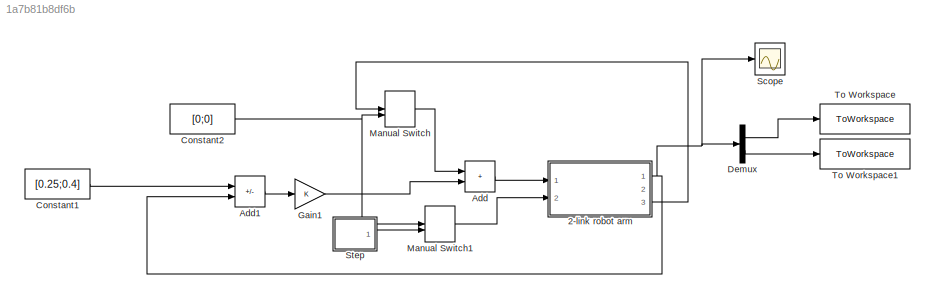
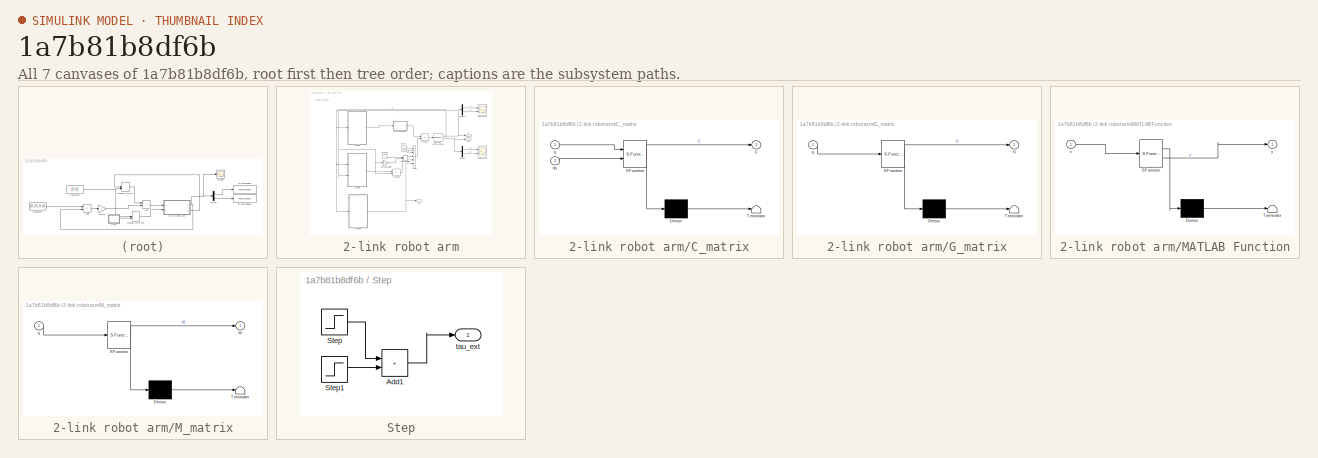
[diagram: thumbnail index - all 7 canvases of the model, root first then tree order]
MODEL slx_1a7b81b8df6b
KIND model
CONFIG AbsTol = auto
CONFIG EnableMultiTasking = on
CONFIG FixedStep = T_s
CONFIG InitFcn = init_exp_icr
CONFIG MaxStep = auto
CONFIG MinStep = auto
CONFIG RelTol = 1e-3
CONFIG SampleTimeConstraint = Unconstrained
CONFIG SolverName = ode4
CONFIG StartTime = 0.0
CONFIG StopTime = 50
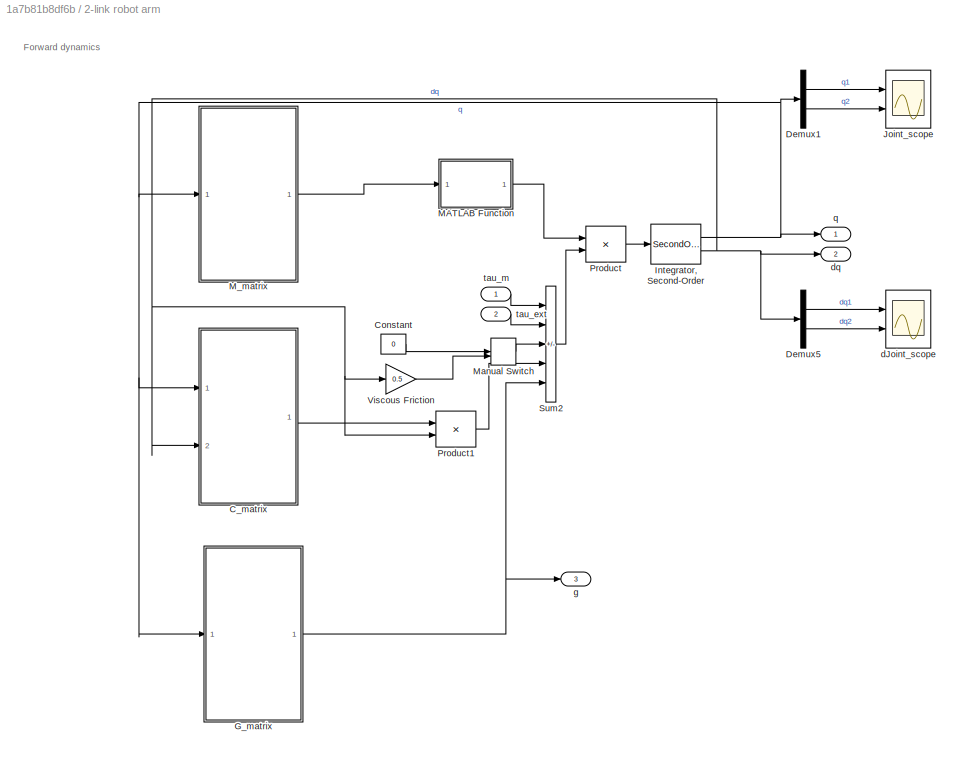
BLOCK [SubSystem] 2-link robot arm
  Ports = [2, 3]
  RequestExecContextInheritance = off
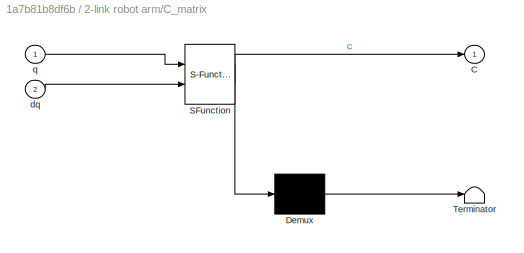
BLOCK [SubSystem] 2-link robot arm/C_matrix
  ErrorFcn = Stateflow.Translate.translate
  PermitHierarchicalResolution = ExplicitOnly
  Ports = [2, 1]
  RequestExecContextInheritance = off
  SFBlockType = MATLAB Function
  TreatAsAtomicUnit = on
BLOCK [Demux] 2-link robot arm/C_matrix/ Demux 
  Outputs = 1
  Ports = [1, 1]
BLOCK [S-Function] 2-link robot arm/C_matrix/ SFunction 
  EnableBusSupport = on
  FunctionName = sf_sfun
  Parameters = l1,lc2,m2
  PortCounts = [2 2]
  Ports = [2, 2]
  SFcnIsStateOwnerBlock = off
  SFunctionDeploymentMode = off
  Tag = Stateflow S-Function 1
BLOCK [Terminator] 2-link robot arm/C_matrix/ Terminator 
BLOCK [Outport] 2-link robot arm/C_matrix/C
  VectorParamsAs1DForOutWhenUnconnected = off
BLOCK [Inport] 2-link robot arm/C_matrix/dq
  Port = 2
BLOCK [Inport] 2-link robot arm/C_matrix/q
BLOCK [Constant] 2-link robot arm/Constant
  Value = 0
BLOCK [Demux] 2-link robot arm/Demux1
  Outputs = 2
  Ports = [1, 2]
BLOCK [Demux] 2-link robot arm/Demux5
  Outputs = 2
  Ports = [1, 2]
BLOCK [SubSystem] 2-link robot arm/G_matrix
  ErrorFcn = Stateflow.Translate.translate
  PermitHierarchicalResolution = ExplicitOnly
  Ports = [1, 1]
  RequestExecContextInheritance = off
  SFBlockType = MATLAB Function
  TreatAsAtomicUnit = on
BLOCK [Demux] 2-link robot arm/G_matrix/ Demux 
  Outputs = 1
  Ports = [1, 1]
BLOCK [S-Function] 2-link robot arm/G_matrix/ SFunction 
  EnableBusSupport = on
  FunctionName = sf_sfun
  Parameters = g,l1,lc1,lc2,m1,m2
  PortCounts = [1 2]
  Ports = [1, 2]
  SFcnIsStateOwnerBlock = off
  SFunctionDeploymentMode = off
  Tag = Stateflow S-Function 8
BLOCK [Terminator] 2-link robot arm/G_matrix/ Terminator 
BLOCK [Outport] 2-link robot arm/G_matrix/G
  VectorParamsAs1DForOutWhenUnconnected = off
BLOCK [Inport] 2-link robot arm/G_matrix/q
BLOCK [SecondOrderIntegrator] 2-link robot arm/Integrator, Second-Order
  ICDXDT = [0 0]
  ICX = [0,0]
  Ports = [1, 2]
BLOCK [Scope] 2-link robot arm/Joint_scope
  Floating = off
  NumInputPorts = 2
  Ports = [2]
  ScopeSpecificationString = Simulink.scopes.TimeScopeBlockCfg('CurrentConfiguration', extmgr.ConfigurationSet(extmgr.Configuration('Core','General UI',true,'FigureColor',[0 0 0]),extmgr.Configuration('Core','Source UI',true),extmgr.Configuration('Sources','WiredSimulink',true),extmgr.Configuration('Visuals','Time Domain',true,'SerializedDisplays',{struct('MinYLimReal','-16.75801','MaxYLimReal','60.38907','YLabelReal','q_i(t)...<+1824ch>
BLOCK [SubSystem] 2-link robot arm/MATLAB Function
  ErrorFcn = Stateflow.Translate.translate
  PermitHierarchicalResolution = ExplicitOnly
  Ports = [1, 1]
  RequestExecContextInheritance = off
  SFBlockType = MATLAB Function
  TreatAsAtomicUnit = on
BLOCK [Demux] 2-link robot arm/MATLAB Function/ Demux 
  Outputs = 1
  Ports = [1, 1]
BLOCK [S-Function] 2-link robot arm/MATLAB Function/ SFunction 
  EnableBusSupport = on
  FunctionName = sf_sfun
  PortCounts = [1 2]
  Ports = [1, 2]
  SFcnIsStateOwnerBlock = off
  SFunctionDeploymentMode = off
  Tag = Stateflow S-Function 3
BLOCK [Terminator] 2-link robot arm/MATLAB Function/ Terminator 
BLOCK [Inport] 2-link robot arm/MATLAB Function/u
BLOCK [Outport] 2-link robot arm/MATLAB Function/y
BLOCK [SubSystem] 2-link robot arm/M_matrix
  ErrorFcn = Stateflow.Translate.translate
  PermitHierarchicalResolution = ExplicitOnly
  Ports = [1, 1]
  RequestExecContextInheritance = off
  SFBlockType = MATLAB Function
  TreatAsAtomicUnit = on
BLOCK [Demux] 2-link robot arm/M_matrix/ Demux 
  Outputs = 1
  Ports = [1, 1]
BLOCK [S-Function] 2-link robot arm/M_matrix/ SFunction 
  EnableBusSupport = on
  FunctionName = sf_sfun
  Parameters = I1zz,I2zz,l1,lc1,lc2,m1,m2
  PortCounts = [1 2]
  Ports = [1, 2]
  SFcnIsStateOwnerBlock = off
  SFunctionDeploymentMode = off
  Tag = Stateflow S-Function 2
BLOCK [Terminator] 2-link robot arm/M_matrix/ Terminator 
BLOCK [Outport] 2-link robot arm/M_matrix/M
  VectorParamsAs1DForOutWhenUnconnected = off
BLOCK [Inport] 2-link robot arm/M_matrix/q
BLOCK [ManualSwitch] 2-link robot arm/Manual Switch
  CurrentSetting = 0
BLOCK [Product] 2-link robot arm/Product
  Multiplication = Matrix(*)
  Ports = [2, 1]
BLOCK [Product] 2-link robot arm/Product1
  Multiplication = Matrix(*)
  Ports = [2, 1]
BLOCK [Sum] 2-link robot arm/Sum2
  IconShape = rectangular
  Inputs = ++|---
  Ports = [5, 1]
BLOCK [Gain] 2-link robot arm/Viscous Friction
  Gain = 0.5
BLOCK [Scope] 2-link robot arm/dJoint_scope
  Floating = off
  NumInputPorts = 2
  Ports = [2]
  ScopeSpecificationString = Simulink.scopes.TimeScopeBlockCfg('CurrentConfiguration', extmgr.ConfigurationSet(extmgr.Configuration('Core','General UI',true,'FigureColor',[0 0 0]),extmgr.Configuration('Core','Source UI',true),extmgr.Configuration('Sources','WiredSimulink',true,'DataLoggingVariableName','ScopeData1'),extmgr.Configuration('Visuals','Time Domain',true,'SerializedDisplays',{struct('MinYLimReal','-23.61564','MaxYL...<+1852ch>
BLOCK [Outport] 2-link robot arm/dq 
  NameLocation = right
  Port = 2
BLOCK [Outport] 2-link robot arm/g
  NameLocation = right
  Port = 3
BLOCK [Outport] 2-link robot arm/q 
  NameLocation = right
BLOCK [Inport] 2-link robot arm/tau_ext
  Port = 2
BLOCK [Inport] 2-link robot arm/tau_m
  NameLocation = top
BLOCK [Sum] Add
  IconShape = rectangular
  Ports = [2, 1]
BLOCK [Sum] Add1
  IconShape = rectangular
  Inputs = +-
  Ports = [2, 1]
BLOCK [Constant] Constant1
  Value = [0.25;0.4]
BLOCK [Constant] Constant2
  Value = [0;0]
BLOCK [Demux] Demux
  Outputs = 2
  Ports = [1, 2]
BLOCK [Gain] Gain1
  Gain = K
BLOCK [ManualSwitch] Manual Switch
  CurrentSetting = 0
BLOCK [ManualSwitch] Manual Switch1
BLOCK [Scope] Scope
  Floating = off
  NumInputPorts = 1
  Ports = [1]
  ScopeSpecificationString = Simulink.scopes.TimeScopeBlockCfg('CurrentConfiguration', extmgr.ConfigurationSet(extmgr.Configuration('Core','General UI',true),extmgr.Configuration('Core','Source UI',true),extmgr.Configuration('Sources','WiredSimulink',true,'DataLoggingVariableName','ScopeData1'),extmgr.Configuration('Visuals','Time Domain',true,'SerializedDisplays',{struct('MinYLimReal','-2.78383','MaxYLimReal','0.84155','YLab...<+1435ch>
BLOCK [SubSystem] Step
  Ports = [0, 1]
  RequestExecContextInheritance = off
BLOCK [Sum] Step/Add1
  IconShape = rectangular
  Ports = [2, 1]
BLOCK [Step] Step/Step
  After = [0.5;3]
  Before = [0;0]
  SampleTime = 0
  Time = 5
BLOCK [Step] Step/Step1
  After = [-0.5;-3]
  Before = [0;0]
  SampleTime = 0
  Time = 5.2
BLOCK [Outport] Step/tau_ext
BLOCK [ToWorkspace] To Workspace
  FixptAsFi = on
  MaxDataPoints = inf
  Ports = [1]
  SampleTime = -1
  SaveFormat = Timeseries
  VariableName = q1
BLOCK [ToWorkspace] To Workspace1
  FixptAsFi = on
  MaxDataPoints = inf
  Ports = [1]
  SampleTime = -1
  SaveFormat = Timeseries
  VariableName = q2
ANNOTATION 2-link robot arm: Forward dynamics
LINE 2-link robot arm/C_matrix:1 -> 2-link robot arm/Product1:1
LINE 2-link robot arm/Constant:1 -> 2-link robot arm/Manual Switch:1
LINE 2-link robot arm/Demux1:1 -> 2-link robot arm/Joint_scope:1
LINE 2-link robot arm/Demux1:2 -> 2-link robot arm/Joint_scope:2
LINE 2-link robot arm/Demux5:1 -> 2-link robot arm/dJoint_scope:1
LINE 2-link robot arm/Demux5:2 -> 2-link robot arm/dJoint_scope:2
NET 2-link robot arm/G_matrix:1 -> 2-link robot arm/Sum2:5, 2-link robot arm/g:1
NET 2-link robot arm/Integrator, Second-Order:1 -> 2-link robot arm/C_matrix:1, 2-link robot arm/Demux1:1, 2-link robot arm/G_matrix:1, 2-link robot arm/M_matrix:1, 2-link robot arm/q :1
NET 2-link robot arm/Integrator, Second-Order:2 -> 2-link robot arm/C_matrix:2, 2-link robot arm/Demux5:1, 2-link robot arm/Product1:2, 2-link robot arm/Viscous Friction:1, 2-link robot arm/dq :1
LINE 2-link robot arm/MATLAB Function:1 -> 2-link robot arm/Product:1
LINE 2-link robot arm/M_matrix:1 -> 2-link robot arm/MATLAB Function:1
LINE 2-link robot arm/Manual Switch:1 -> 2-link robot arm/Sum2:3
LINE 2-link robot arm/Product1:1 -> 2-link robot arm/Sum2:4
LINE 2-link robot arm/Product:1 -> 2-link robot arm/Integrator, Second-Order:1
LINE 2-link robot arm/Sum2:1 -> 2-link robot arm/Product:2
LINE 2-link robot arm/Viscous Friction:1 -> 2-link robot arm/Manual Switch:2
LINE 2-link robot arm/tau_ext:1 -> 2-link robot arm/Sum2:2
LINE 2-link robot arm/tau_m:1 -> 2-link robot arm/Sum2:1
NET 2-link robot arm:1 -> Add1:2, Demux:1, Scope:1
LINE 2-link robot arm:3 -> Manual Switch:1
LINE Add1:1 -> Gain1:1
LINE Add:1 -> 2-link robot arm:1
LINE Constant1:1 -> Add1:1
NET Constant2:1 -> Manual Switch1:1, Manual Switch:2
LINE Demux:1 -> To Workspace:1
LINE Demux:2 -> To Workspace1:1
LINE Gain1:1 -> Add:2
LINE Manual Switch1:1 -> 2-link robot arm:2
LINE Manual Switch:1 -> Add:1
LINE Step/Add1:1 -> Step/tau_ext:1
LINE Step/Step1:1 -> Step/Add1:2
LINE Step/Step:1 -> Step/Add1:1
LINE Step:1 -> Manual Switch1:2
note: NET lines group one-source signal fan-out (src -> all destinations, sorted); 1:1 wires keep LINE
CHART 2-link
 robot arm/C_matrix states=1 transitions=1
  STATE_LABEL 'eML_blk_kernel()'
  STATE_LABEL 'SCRIPT:\nfunction C = C_matrix(q,dq, l1, lc2, m2)\n%#codegen\n\n%    This function was generated by the Symbolic Math Toolbox version 8.3.\n%    05-Nov-2019 15:18:30\nq1 = q(1);\nq2 = q(2);\ndq1 = dq(1);\ndq2 = dq(2);\nt2 = sin(q2);\nC = reshape([-dq2.*l1.*lc2.*m2.*t2,dq1.*l1.*lc2.*m2.*t2,-l1.*lc2.*m2.*t2.*(dq1+dq2),0.0],[2,2]);\n'
CHART 2-link
 robot arm/M_matrix states=1 transitions=1
  STATE_LABEL 'eML_blk_kernel()'
  STATE_LABEL 'SCRIPT:\nfunction M = M_matrix(q, I1zz, I2zz, l1, lc1, lc2, m1, m2)\n%#codegen\n\n%    This function was generated by the Symbolic Math Toolbox version 8.3.\n%    05-Nov-2019 15:18:29\nq1 = q(1);\nq2 = q(2);\nt2 = cos(q2);\nt3 = lc2.^2;\nt4 = m2.*t3;\nt5 = l1.*lc2.*m2.*t2;\nt6 = I2zz+t4+t5;\nM = reshape([I1zz+t5+t6+l1.^2.*m2+lc1.^2.*m1,t6,t6,I2zz+t4],[2,2]);'
CHART 2-link
 robot arm/MATLAB Function states=1 transitions=1
  STATE_LABEL 'eML_blk_kernel()'
  STATE_LABEL 'SCRIPT:\nfunction y = inverse_matrix(u)\n    if det(u) ~= 0\n        y = inv(u);\n    else\n        y = zeros(size(u)); % or handle singular case differently\n    end\nend'
CHART 2-link
 robot arm/G_matrix states=1 transitions=1
  STATE_LABEL 'eML_blk_kernel()'
  STATE_LABEL 'SCRIPT:\nfunction G = G_matrix(q, g, l1, lc1, lc2, m1, m2)\n%#codegen\n\n%    This function was generated by the Symbolic Math Toolbox version 8.3.\n%    05-Nov-2019 15:18:30\nq1 = q(1);\nq2 = q(2);\nt2 = cos(q1);\nt3 = q1+q2;\nt4 = cos(t3);\nG = [g.*m2.*(l1.*t2+lc2.*t4)+g.*lc1.*m1.*t2;g.*lc2.*m2.*t4];\n'
CHART  states=0 transitions=0
CHART  states=0 transitions=0
CHART  states=0 transitions=0
CHART  states=0 transitions=0
